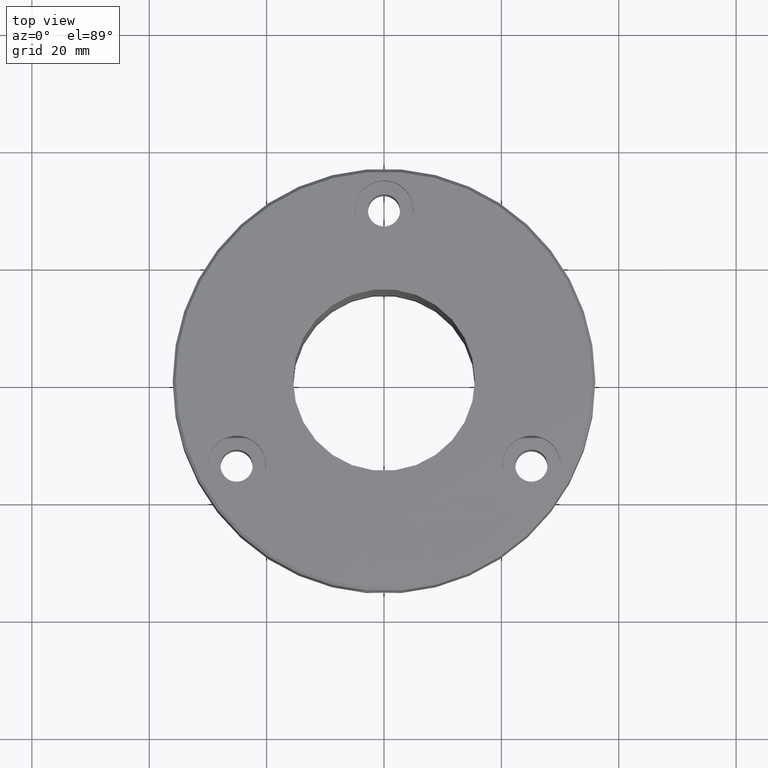
[diagram: clean part render]
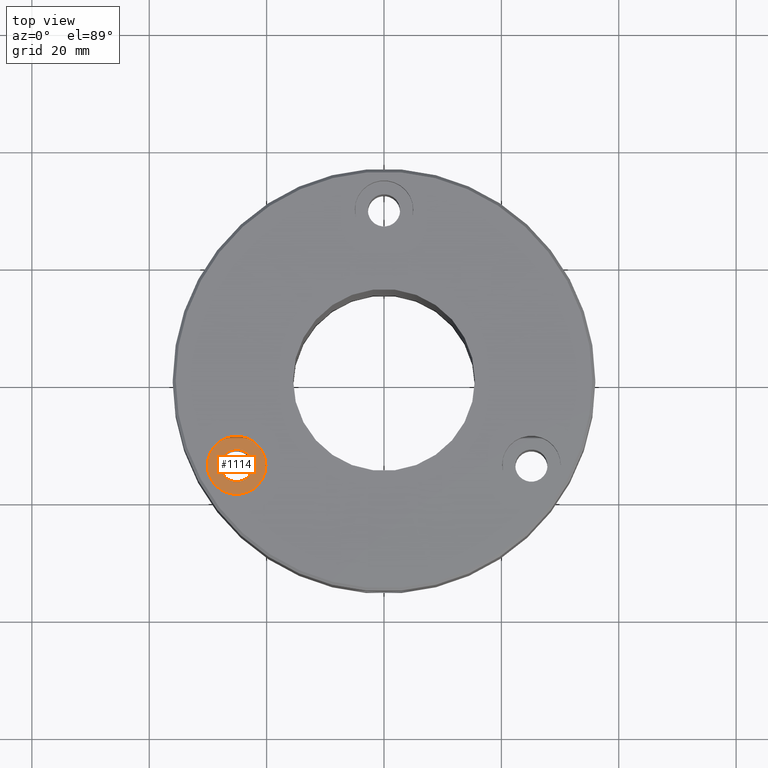
[diagram: same view with one face highlighted and labeled with its STEP entity id]
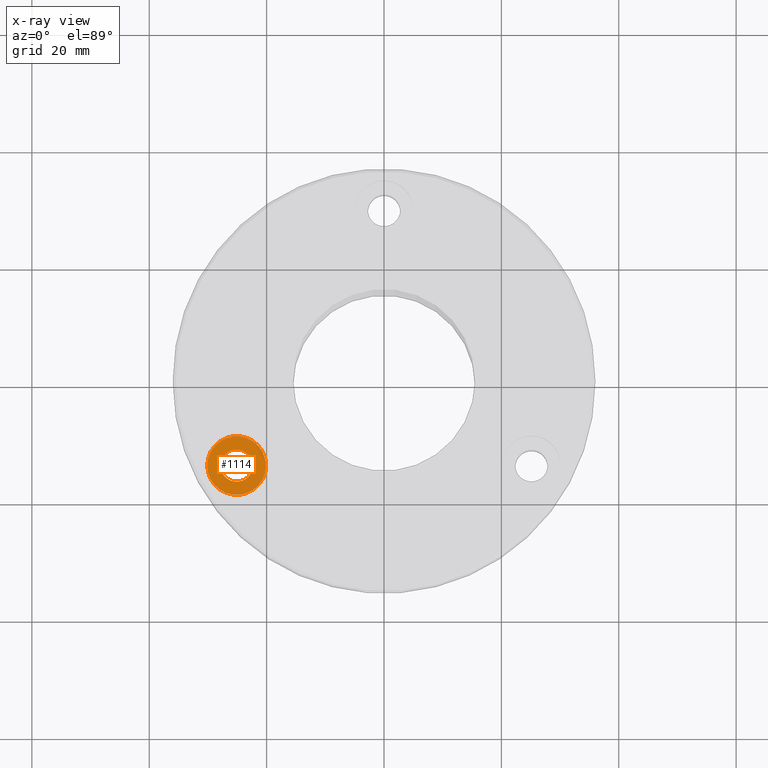
[diagram: x-ray of the same camera — body ghosted, the highlighted face saturated]
A machine part, top view. The second image highlights one B-rep face of the part: STEP entity #1114.
The next image is the same camera in x-ray: the body ghosted, the highlighted face saturated — about 0% of this face is hidden behind the body in this view.
In plain terms, the highlighted planar face has unit normal (0, 0, -1).
Its self-contained STEP definition (entity closure, byte-faithful):
#10 = CIRCLE ( 'NONE', #1159, 2.750000000000005773 ) ;
#16 = VERTEX_POINT ( 'NONE', #608 ) ;
#44 = CIRCLE ( 'NONE', #1139, 4.999999999999997335 ) ;
#115 = DIRECTION ( 'NONE',  ( -0.000000000000000000, -0.000000000000000000, 1.000000000000000000 ) ) ;
#145 = AXIS2_PLACEMENT_3D ( 'NONE', #1035, #734, #604 ) ;
#151 = FACE_OUTER_BOUND ( 'NONE', #295, .T. ) ;
#178 = FACE_BOUND ( 'NONE', #671, .T. ) ;
#199 = ORIENTED_EDGE ( 'NONE', *, *, #1196, .T. ) ;
#212 = VERTEX_POINT ( 'NONE', #823 ) ;
#241 = DIRECTION ( 'NONE',  ( -0.000000000000000000, -0.000000000000000000, 1.000000000000000000 ) ) ;
#295 = EDGE_LOOP ( 'NONE', ( #569, #199 ) ) ;
#332 = EDGE_CURVE ( 'NONE', #713, #972, #10, .T. ) ;
#350 = DIRECTION ( 'NONE',  ( 1.000000000000000000, 0.000000000000000000, 0.000000000000000000 ) ) ;
#353 = DIRECTION ( 'NONE',  ( -0.000000000000000000, -0.000000000000000000, 1.000000000000000000 ) ) ;
#360 = AXIS2_PLACEMENT_3D ( 'NONE', #534, #929, #960 ) ;
#433 = DIRECTION ( 'NONE',  ( 1.000000000000000000, 0.000000000000000000, 0.000000000000000000 ) ) ;
#462 = AXIS2_PLACEMENT_3D ( 'NONE', #601, #241, #433 ) ;
#476 = EDGE_CURVE ( 'NONE', #212, #16, #44, .T. ) ;
#494 = CARTESIAN_POINT ( 'NONE',  ( -22.36473670974874395, -14.49999999999994316, -5.400000000000000355 ) ) ;
#515 = EDGE_CURVE ( 'NONE', #972, #713, #1064, .T. ) ;
#534 = CARTESIAN_POINT ( 'NONE',  ( -22.36473670974874395, -14.49999999999994316, -5.400000000000000355 ) ) ;
#558 = PLANE ( 'NONE',  #360 ) ;
#569 = ORIENTED_EDGE ( 'NONE', *, *, #476, .T. ) ;
#583 = CARTESIAN_POINT ( 'NONE',  ( -25.11473670974875105, -14.49999999999994316, -5.400000000000000355 ) ) ;
#601 = CARTESIAN_POINT ( 'NONE',  ( -25.11473670974875105, -14.49999999999994316, -5.400000000000000355 ) ) ;
#604 = DIRECTION ( 'NONE',  ( 1.000000000000000000, 0.000000000000000000, 0.000000000000000000 ) ) ;
#608 = CARTESIAN_POINT ( 'NONE',  ( -30.11473670974874750, -14.49999999999994316, -5.400000000000000355 ) ) ;
#671 = EDGE_LOOP ( 'NONE', ( #1068, #895 ) ) ;
#713 = VERTEX_POINT ( 'NONE', #494 ) ;
#734 = DIRECTION ( 'NONE',  ( -0.000000000000000000, -0.000000000000000000, 1.000000000000000000 ) ) ;
#798 = DIRECTION ( 'NONE',  ( 1.000000000000000000, 0.000000000000000000, 0.000000000000000000 ) ) ;
#823 = CARTESIAN_POINT ( 'NONE',  ( -20.11473670974875461, -14.49999999999994316, -5.400000000000000355 ) ) ;
#892 = CARTESIAN_POINT ( 'NONE',  ( -27.86473670974875816, -14.49999999999994316, -5.400000000000000355 ) ) ;
#895 = ORIENTED_EDGE ( 'NONE', *, *, #515, .F. ) ;
#929 = DIRECTION ( 'NONE',  ( 0.000000000000000000, 0.000000000000000000, -1.000000000000000000 ) ) ;
#960 = DIRECTION ( 'NONE',  ( -1.000000000000000000, 0.000000000000000000, -0.000000000000000000 ) ) ;
#972 = VERTEX_POINT ( 'NONE', #892 ) ;
#1029 = CIRCLE ( 'NONE', #462, 4.999999999999997335 ) ;
#1035 = CARTESIAN_POINT ( 'NONE',  ( -25.11473670974875105, -14.49999999999994316, -5.400000000000000355 ) ) ;
#1064 = CIRCLE ( 'NONE', #145, 2.750000000000005773 ) ;
#1068 = ORIENTED_EDGE ( 'NONE', *, *, #332, .F. ) ;
#1114 = ADVANCED_FACE ( 'NONE', ( #178, #151 ), #558, .F. ) ;
#1133 = CARTESIAN_POINT ( 'NONE',  ( -25.11473670974875105, -14.49999999999994316, -5.400000000000000355 ) ) ;
#1139 = AXIS2_PLACEMENT_3D ( 'NONE', #583, #115, #798 ) ;
#1159 = AXIS2_PLACEMENT_3D ( 'NONE', #1133, #353, #350 ) ;
#1196 = EDGE_CURVE ( 'NONE', #16, #212, #1029, .T. ) ;